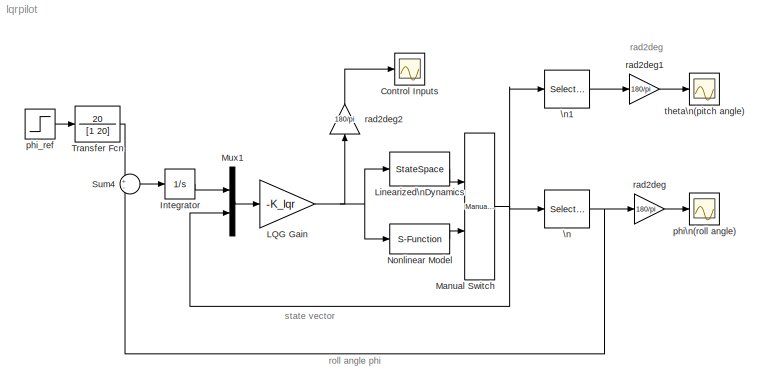
MODEL lqrpilot
KIND model
CONFIG AbsTol = auto
CONFIG FixedStep = auto
CONFIG MaxStep = auto
CONFIG MinStep = auto
CONFIG PreLoadFcn = load lqrpilot
CONFIG RelTol = 1e-3
CONFIG Solver = ode45
CONFIG SolverMode = Auto
CONFIG StartTime = 0.0
CONFIG StopTime = 60
BLOCK [Scope] Control Inputs
  DataFormat = StructureWithTime
  Decimation = 1
  Floating = off
  Grid = on
  LimitDataPoints = off
  MaxDataPoints = 5000
  NumInputPorts = 1
  Ports = [1]
  SampleInput = off
  SampleTime = 0
  SaveName = ScopeData2
  SaveToWorkspace = off
  TickLabels = OneTimeTick
  TimeRange = 60
  YMax = 15
  YMin = -30
  ZoomMode = yonly
BLOCK [Integrator] Integrator
  AbsoluteTolerance = auto
  ExternalReset = none
  InitialCondition = 0
  InitialConditionSource = internal
  LimitOutput = off
  LowerSaturationLimit = -inf
  Ports = [1, 1]
  ShowSaturationPort = off
  ShowStatePort = off
  UpperSaturationLimit = inf
BLOCK [Gain] LQG Gain
  Gain = -K_lqr
  Multiplication = Matrix(K*u)
  SaturateOnIntegerOverflow = on
BLOCK [StateSpace] Linearized\nDynamics
  A = A15
  AbsoluteTolerance = auto
  B = B
  C = eye(8)
  D = zeros(8,4)
  Realization = auto
  X0 = 0
BLOCK [Reference] Manual Switch  REF=simulink3/Nonlinear/Manual Switch
  Ports = [2, 1]
  SourceBlock = simulink3/Nonlinear/Manual Switch
  SourceType = Manual Switch
  action = 0
  sw = 0
BLOCK [Mux] Mux1
  DisplayOption = bar
  Inputs = 2
  Ports = [2, 1]
BLOCK [S-Function] Nonlinear Model
  FunctionName = sf_aerodyn
  PortCounts = []
  Ports = [1, 1]
  SFunctionModules = ''
BLOCK [Sum] Sum4
  IconShape = round
  Inputs = +-
  Ports = [2, 1]
  SaturateOnIntegerOverflow = on
BLOCK [TransferFcn] Transfer Fcn
  AbsoluteTolerance = auto
  Denominator = [1 20]
  Numerator = 20
  Realization = auto
BLOCK [Selector] \n
  ColumnSrc = Internal
  Columns = 1
  ElementSrc = Internal
  Elements = 8
  InputPortWidth = 8
  InputType = Vector
  Ports = [1, 1]
  RowSrc = Internal
  Rows = 1
BLOCK [Selector] \n1
  ColumnSrc = Internal
  Columns = 1
  ElementSrc = Internal
  Elements = 7
  InputPortWidth = 8
  InputType = Vector
  Ports = [1, 1]
  RowSrc = Internal
  Rows = 1
BLOCK [Scope] phi\n(roll angle)
  DataFormat = StructureWithTime
  Decimation = 1
  Floating = off
  Grid = on
  LimitDataPoints = off
  MaxDataPoints = 5000
  NumInputPorts = 1
  Ports = [1]
  SampleInput = off
  SampleTime = 0
  SaveName = ScopeData
  SaveToWorkspace = off
  TickLabels = OneTimeTick
  TimeRange = 60
  YMax = 60
  YMin = -20
  ZoomMode = on
BLOCK [Step] phi_ref
  After = pi/3
  Before = 0
  SampleTime = 0
  Time = 0
  VectorParams1D = on
BLOCK [Gain] rad2deg
  Gain = 180/pi
  Multiplication = Element-wise(K.*u)
  SaturateOnIntegerOverflow = on
BLOCK [Gain] rad2deg1
  Gain = 180/pi
  Multiplication = Element-wise(K.*u)
  SaturateOnIntegerOverflow = on
BLOCK [Gain] rad2deg2
  Gain = 180/pi
  Multiplication = Element-wise(K.*u)
  SaturateOnIntegerOverflow = on
BLOCK [Scope] theta\n(pitch angle)
  DataFormat = StructureWithTime
  Decimation = 1
  Floating = off
  Grid = on
  LimitDataPoints = off
  MaxDataPoints = 5000
  NumInputPorts = 1
  Ports = [1]
  SampleInput = off
  SampleTime = 0
  SaveName = ScopeData1
  SaveToWorkspace = off
  TickLabels = OneTimeTick
  TimeRange = 60
  YMax = 10
  YMin = -7.5
  ZoomMode = on
LINE Integrator:1 -> Mux1:1
NET LQG Gain:1 -> Linearized\nDynamics:1, Nonlinear Model:1, rad2deg2:1
LINE Linearized\nDynamics:1 -> Manual Switch:1
NET Manual Switch:1 -> Mux1:2, \n1:1, \n:1
LINE Mux1:1 -> LQG Gain:1
LINE Nonlinear Model:1 -> Manual Switch:2
LINE Sum4:1 -> Integrator:1
LINE Transfer Fcn:1 -> Sum4:1
LINE \n1:1 -> rad2deg1:1
NET \n:1 -> Sum4:2, rad2deg:1
LINE phi_ref:1 -> Transfer Fcn:1
LINE rad2deg1:1 -> theta\n(pitch angle):1
LINE rad2deg2:1 -> Control Inputs:1
LINE rad2deg:1 -> phi\n(roll angle):1
note: NET lines group one-source signal fan-out (src -> all destinations, sorted); 1:1 wires keep LINE
